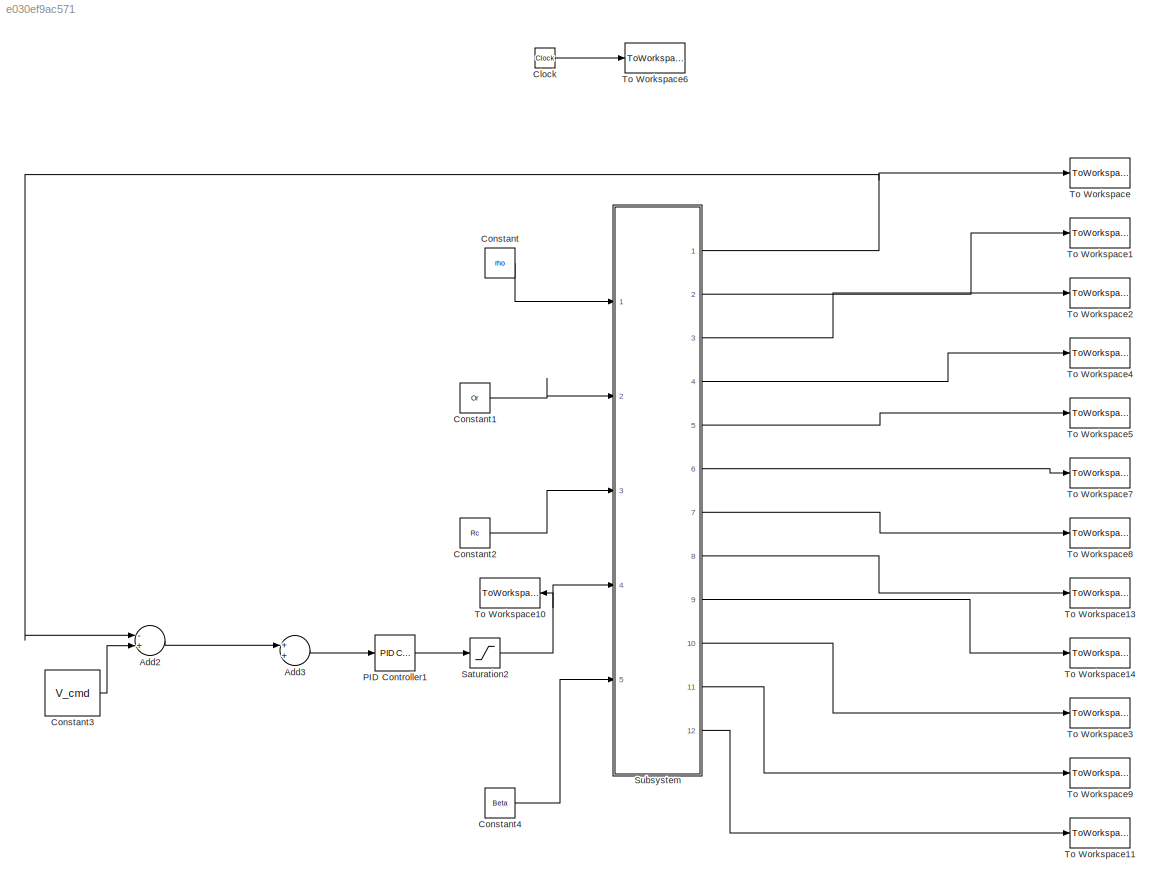
MODEL slx_e030ef9ac571
KIND model
BLOCK [Sum] Add2
  InputSameDT = off
  Inputs = -+
  OutDataTypeStr = Inherit: Inherit via internal rule
  Ports = [2, 1]
  SaturateOnIntegerOverflow = off
BLOCK [Sum] Add3
  InputSameDT = off
  OutDataTypeStr = Inherit: Inherit via internal rule
  Ports = [2, 1]
  SaturateOnIntegerOverflow = off
BLOCK [Clock] Clock
BLOCK [Constant] Constant
  Value = rho
BLOCK [Constant] Constant1
  Value = Or
BLOCK [Constant] Constant2
  Value = Rc
BLOCK [Constant] Constant3
  Value = V_cmd
BLOCK [Constant] Constant4
  Value = Beta
BLOCK [Reference] PID Controller1  REF=simulink/Continuous/PID Controller
  AntiWindupMode = none
  Controller = PI
  D = 1
  DOutDataTypeStr = Inherit: Inherit via internal rule
  DOutMax = []
  DOutMin = []
  DParamDataTypeStr = Inherit: Inherit via internal rule
  DParamMax = []
  DParamMin = []
  ExternalReset = none
  FilterContinuousStateAttributes = ''
  FilterMethod = Forward Euler
  FilterOutDataTypeStr = Inherit: Inherit via internal rule
  FilterOutMax = []
  FilterOutMin = []
  FilterRTWStateStorageClass = Auto
  FilterStateMustResolveToSignalObject = off
  Form = Parallel
  I = 20
  IOutDataTypeStr = Inherit: Inherit via internal rule
  IOutMax = []
  IOutMin = []
  IParamDataTypeStr = Inherit: Inherit via internal rule
  IParamMax = []
  IParamMin = []
  IgnoreLimit = off
  InitialConditionForFilter = 0
  InitialConditionForIntegrator = 0
  InitialConditionSource = internal
  IntegratorContinuousStateAttributes = ''
  IntegratorMethod = Forward Euler
  IntegratorOutDataTypeStr = Inherit: Inherit via internal rule
  IntegratorOutMax = []
  IntegratorOutMin = []
  IntegratorRTWStateStorageClass = Auto
  IntegratorStateMustResolveToSignalObject = off
  Kb = 1
  KbOutDataTypeStr = Inherit: Inherit via internal rule
  KbOutMax = []
  KbOutMin = []
  KbParamDataTypeStr = Inherit: Inherit via internal rule
  KbParamMax = []
  KbParamMin = []
  Kt = 1
  KtOutDataTypeStr = Inherit: Inherit via internal rule
  KtOutMax = []
  KtOutMin = []
  KtParamDataTypeStr = Inherit: Inherit via internal rule
  KtParamMax = []
  KtParamMin = []
  LimitOutput = off
  LinearizeAsGain = on
  LockScale = off
  LowerSaturationLimit = -inf
  N = 100
  NOutDataTypeStr = Inherit: Inherit via internal rule
  NOutMax = []
  NOutMin = []
  NParamDataTypeStr = Inherit: Inherit via internal rule
  NParamMax = []
  NParamMin = []
  P = 30
  POutDataTypeStr = Inherit: Inherit via internal rule
  POutMax = []
  POutMin = []
  PParamDataTypeStr = Inherit: Inherit via internal rule
  PParamMax = []
  PParamMin = []
  Ports = [1, 1]
  RndMeth = Floor
  SampleTime = 1
  SaturateOnIntegerOverflow = off
  SaturationOutDataTypeStr = Inherit: Same as input
  SaturationOutMax = []
  SaturationOutMin = []
  SourceBlock = simulink/Continuous/PID Controller
  SourceType = PID 1dof
  SumAccumDataTypeStr = Inherit: Inherit via internal rule
  SumDAccumDataTypeStr = Inherit: Inherit via internal rule
  SumDOutDataTypeStr = Inherit: Inherit via internal rule
  SumDOutMax = []
  SumDOutMin = []
  SumI1AccumDataTypeStr = Inherit: Inherit via internal rule
  SumI1OutDataTypeStr = Inherit: Inherit via internal rule
  SumI1OutMax = []
  SumI1OutMin = []
  SumI2AccumDataTypeStr = Inherit: Inherit via internal rule
  SumI2OutDataTypeStr = Inherit: Inherit via internal rule
  SumI2OutMax = []
  SumI2OutMin = []
  SumI3AccumDataTypeStr = Inherit: Inherit via internal rule
  SumI3OutDataTypeStr = Inherit: Inherit via internal rule
  SumI3OutMax = []
  SumI3OutMin = []
  SumOutDataTypeStr = Inherit: Inherit via internal rule
  SumOutMax = []
  SumOutMin = []
  TimeDomain = Continuous-time
  TrackingMode = off
  UpperSaturationLimit = inf
  ZeroCross = on
BLOCK [Saturate] Saturation2
  InputPortMap = u0
  LowerLimit = 0
  Ports = [1, 1]
  UpperLimit = inf
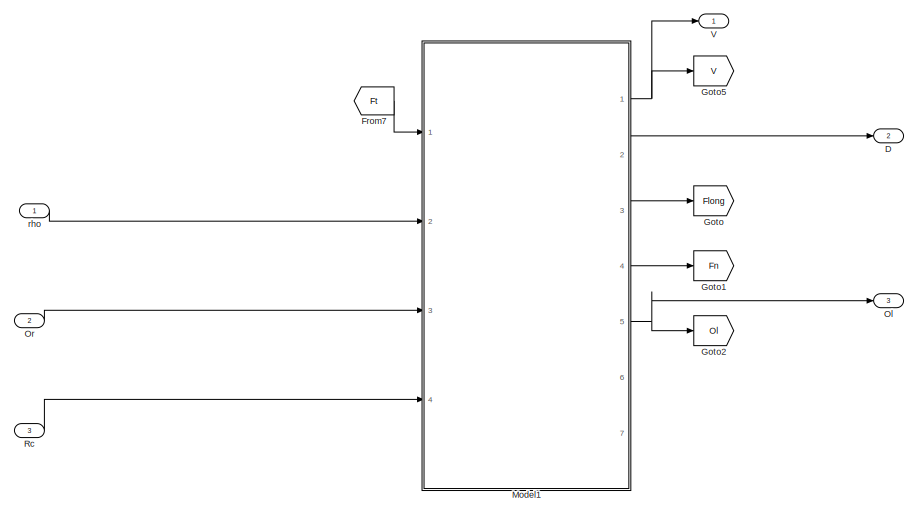
[diagram: Subsystem - part 1/2, full width, top band]
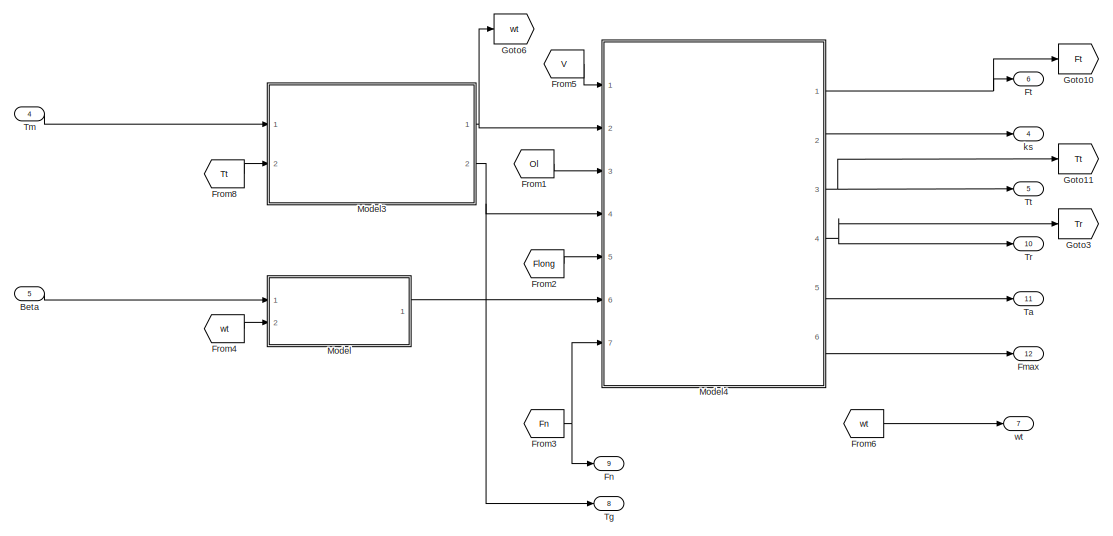
[diagram: Subsystem - part 2/2, full width, bottom band]
BLOCK [SubSystem] Subsystem
  FunctionWithSeparateData = off
  MaskHideContents = off
  MinAlgLoopOccurrences = off
  Opaque = off
  Ports = [5, 12]
  PropExecContextOutsideSubsystem = off
  RTWSystemCode = Auto
  RequestExecContextInheritance = off
BLOCK [Inport] Subsystem/Beta
  IconDisplay = Port number
  Port = 5
BLOCK [Outport] Subsystem/D
  IconDisplay = Port number
  Port = 2
BLOCK [Outport] Subsystem/Fmax 
  IconDisplay = Port number
  Port = 12
BLOCK [Outport] Subsystem/Fn
  IconDisplay = Port number
  Port = 9
BLOCK [From] Subsystem/From1
  GotoTag = Ol
BLOCK [From] Subsystem/From2
  GotoTag = Flong
BLOCK [From] Subsystem/From3
  GotoTag = Fn
BLOCK [From] Subsystem/From4
  GotoTag = wt
BLOCK [From] Subsystem/From5
  GotoTag = V
BLOCK [From] Subsystem/From6
  GotoTag = wt
BLOCK [From] Subsystem/From7
  GotoTag = Ft
BLOCK [From] Subsystem/From8
  GotoTag = Tt
BLOCK [Outport] Subsystem/Ft
  IconDisplay = Port number
  Port = 6
BLOCK [Goto] Subsystem/Goto
  GotoTag = Flong
BLOCK [Goto] Subsystem/Goto1
  GotoTag = Fn
BLOCK [Goto] Subsystem/Goto10
  GotoTag = Ft
BLOCK [Goto] Subsystem/Goto11
  GotoTag = Tt
BLOCK [Goto] Subsystem/Goto2
  GotoTag = Ol
BLOCK [Goto] Subsystem/Goto3
  GotoTag = Tr
BLOCK [Goto] Subsystem/Goto5
  GotoTag = V
BLOCK [Goto] Subsystem/Goto6
  GotoTag = wt
BLOCK [ModelReference] Subsystem/Model
  CopyOfModelName = Brakes.slx
  DefaultDataLogging = on
  ModelNameDialog = Brakes.slx
  ModelReferenceVersion = 1.5
  Ports = [2, 1]
BLOCK [ModelReference] Subsystem/Model1
  CopyOfModelName = Chassis.slx
  DefaultDataLogging = on
  ModelNameDialog = Chassis.slx
  ModelReferenceVersion = 1.16
  Ports = [4, 7]
BLOCK [ModelReference] Subsystem/Model3
  CopyOfModelName = Gear_Chain.slx
  DefaultDataLogging = on
  ModelNameDialog = Gear_Chain.slx
  ModelReferenceVersion = 1.15
  Ports = [2, 2]
BLOCK [ModelReference] Subsystem/Model4
  CopyOfModelName = Tires.slx
  DefaultDataLogging = on
  ModelNameDialog = Tires.slx
  ModelReferenceVersion = 1.77
  Ports = [7, 6]
BLOCK [Outport] Subsystem/Ol
  IconDisplay = Port number
  Port = 3
BLOCK [Inport] Subsystem/Or
  IconDisplay = Port number
  Port = 2
BLOCK [Inport] Subsystem/Rc
  IconDisplay = Port number
  Port = 3
BLOCK [Outport] Subsystem/Ta
  IconDisplay = Port number
  Port = 11
BLOCK [Outport] Subsystem/Tg
  IconDisplay = Port number
  Port = 8
BLOCK [Inport] Subsystem/Tm
  IconDisplay = Port number
  Port = 4
BLOCK [Outport] Subsystem/Tr
  IconDisplay = Port number
  Port = 10
BLOCK [Outport] Subsystem/Tt
  IconDisplay = Port number
  Port = 5
BLOCK [Outport] Subsystem/V
  IconDisplay = Port number
BLOCK [Outport] Subsystem/ks
  IconDisplay = Port number
  Port = 4
BLOCK [Inport] Subsystem/rho
  IconDisplay = Port number
BLOCK [Outport] Subsystem/wt
  IconDisplay = Port number
  Port = 7
BLOCK [ToWorkspace] To Workspace
  MaxDataPoints = inf
  Ports = [1]
  SampleTime = -1
  VariableName = v
BLOCK [ToWorkspace] To Workspace1
  MaxDataPoints = inf
  Ports = [1]
  SampleTime = -1
  VariableName = d
BLOCK [ToWorkspace] To Workspace10
  MaxDataPoints = inf
  Ports = [1]
  SampleTime = -1
  VariableName = Tm
BLOCK [ToWorkspace] To Workspace11
  MaxDataPoints = inf
  Ports = [1]
  SampleTime = -1
  VariableName = Fmax
BLOCK [ToWorkspace] To Workspace13
  MaxDataPoints = inf
  Ports = [1]
  SampleTime = -1
  VariableName = Tg
BLOCK [ToWorkspace] To Workspace14
  MaxDataPoints = inf
  Ports = [1]
  SampleTime = -1
  VariableName = Fn
BLOCK [ToWorkspace] To Workspace2
  MaxDataPoints = inf
  Ports = [1]
  SampleTime = -1
  VariableName = Ol
BLOCK [ToWorkspace] To Workspace3
  MaxDataPoints = inf
  Ports = [1]
  SampleTime = -1
  VariableName = Tr
BLOCK [ToWorkspace] To Workspace4
  MaxDataPoints = inf
  Ports = [1]
  SampleTime = -1
  VariableName = ks
BLOCK [ToWorkspace] To Workspace5
  MaxDataPoints = inf
  Ports = [1]
  SampleTime = -1
  VariableName = Tt
BLOCK [ToWorkspace] To Workspace6
  MaxDataPoints = inf
  Ports = [1]
  SampleTime = -1
  VariableName = t
BLOCK [ToWorkspace] To Workspace7
  MaxDataPoints = inf
  Ports = [1]
  SampleTime = -1
  VariableName = Ft
BLOCK [ToWorkspace] To Workspace8
  MaxDataPoints = inf
  Ports = [1]
  SampleTime = -1
  VariableName = wt
BLOCK [ToWorkspace] To Workspace9
  MaxDataPoints = inf
  Ports = [1]
  SampleTime = -1
  VariableName = Ta
LINE Add2:1 -> Add3:1
LINE Add3:1 -> PID Controller1:1
LINE Clock:1 -> To Workspace6:1
LINE Constant1:1 -> Subsystem:2
LINE Constant2:1 -> Subsystem:3
LINE Constant3:1 -> Add2:2
LINE Constant4:1 -> Subsystem:5
LINE Constant:1 -> Subsystem:1
LINE PID Controller1:1 -> Saturation2:1
NET Saturation2:1 -> Subsystem:4, To Workspace10:1
LINE Subsystem/Beta:1 -> Subsystem/Model:1
LINE Subsystem/From1:1 -> Subsystem/Model4:3
LINE Subsystem/From2:1 -> Subsystem/Model4:5
NET Subsystem/From3:1 -> Subsystem/Fn:1, Subsystem/Model4:7
LINE Subsystem/From4:1 -> Subsystem/Model:2
LINE Subsystem/From5:1 -> Subsystem/Model4:1
LINE Subsystem/From6:1 -> Subsystem/wt:1
LINE Subsystem/From7:1 -> Subsystem/Model1:1
LINE Subsystem/From8:1 -> Subsystem/Model3:2
NET Subsystem/Model1:1 -> Subsystem/Goto5:1, Subsystem/V:1
LINE Subsystem/Model1:2 -> Subsystem/D:1
LINE Subsystem/Model1:3 -> Subsystem/Goto:1
LINE Subsystem/Model1:4 -> Subsystem/Goto1:1
NET Subsystem/Model1:5 -> Subsystem/Goto2:1, Subsystem/Ol:1
NET Subsystem/Model3:1 -> Subsystem/Goto6:1, Subsystem/Model4:2
NET Subsystem/Model3:2 -> Subsystem/Model4:4, Subsystem/Tg:1
NET Subsystem/Model4:1 -> Subsystem/Ft:1, Subsystem/Goto10:1
LINE Subsystem/Model4:2 -> Subsystem/ks:1
NET Subsystem/Model4:3 -> Subsystem/Goto11:1, Subsystem/Tt:1
NET Subsystem/Model4:4 -> Subsystem/Goto3:1, Subsystem/Tr:1
LINE Subsystem/Model4:5 -> Subsystem/Ta:1
LINE Subsystem/Model4:6 -> Subsystem/Fmax :1
LINE Subsystem/Model:1 -> Subsystem/Model4:6
LINE Subsystem/Or:1 -> Subsystem/Model1:3
LINE Subsystem/Rc:1 -> Subsystem/Model1:4
LINE Subsystem/Tm:1 -> Subsystem/Model3:1
LINE Subsystem/rho:1 -> Subsystem/Model1:2
NET Subsystem:1 -> Add2:1, To Workspace:1
LINE Subsystem:10 -> To Workspace3:1
LINE Subsystem:11 -> To Workspace9:1
LINE Subsystem:12 -> To Workspace11:1
LINE Subsystem:2 -> To Workspace1:1
LINE Subsystem:3 -> To Workspace2:1
LINE Subsystem:4 -> To Workspace4:1
LINE Subsystem:5 -> To Workspace5:1
LINE Subsystem:6 -> To Workspace7:1
LINE Subsystem:7 -> To Workspace8:1
LINE Subsystem:8 -> To Workspace13:1
LINE Subsystem:9 -> To Workspace14:1
note: NET lines group one-source signal fan-out (src -> all destinations, sorted); 1:1 wires keep LINE
